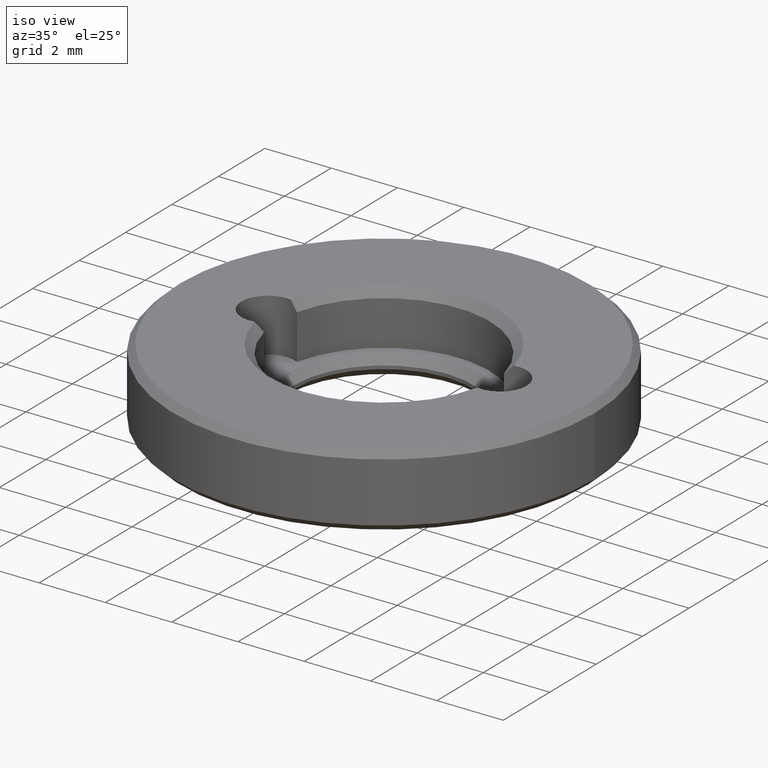
[diagram: clean part render]
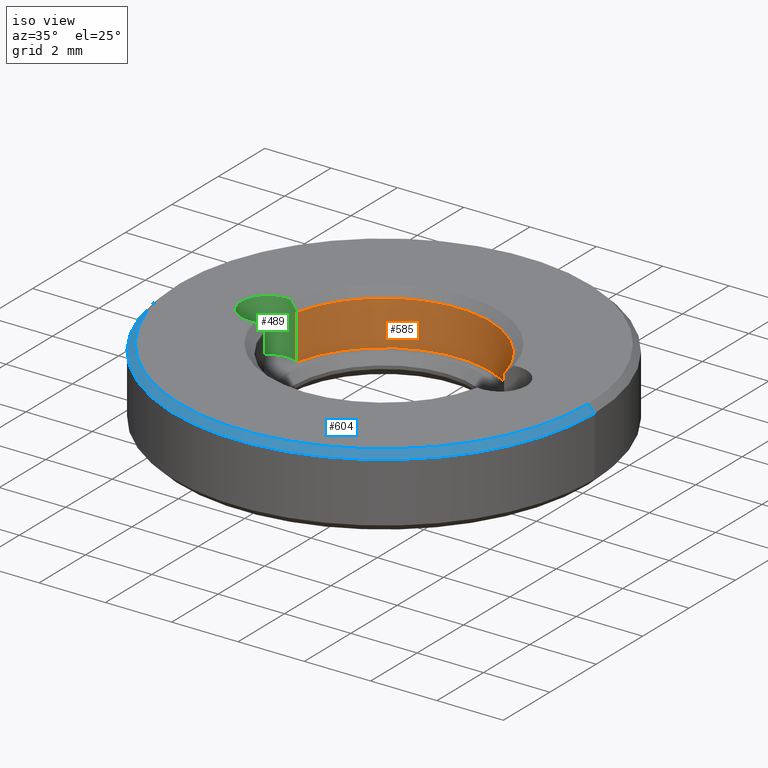
[diagram: same view with three faces highlighted in distinct colors, each labeled with its STEP entity id]
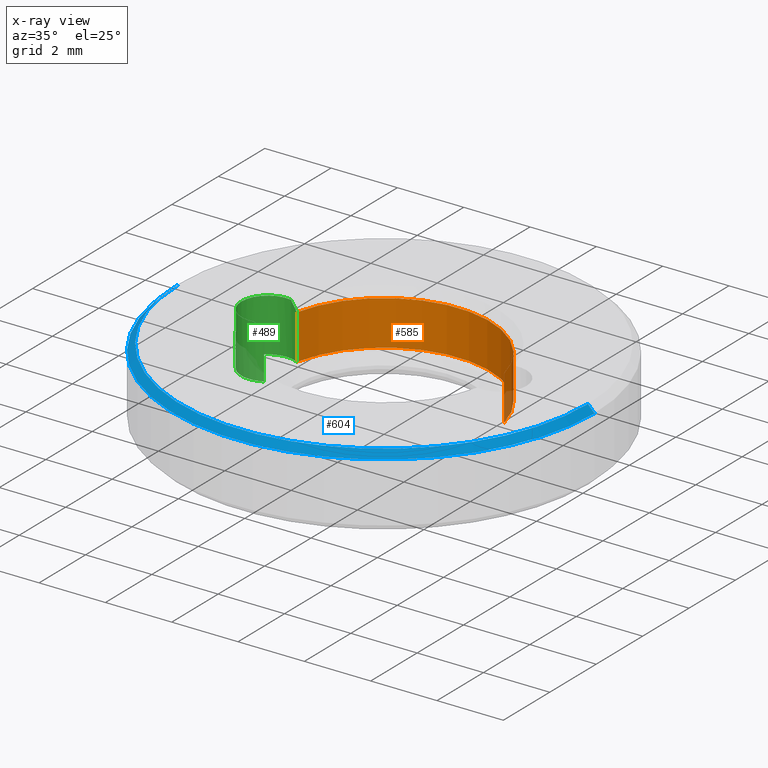
[diagram: x-ray of the same camera — body ghosted, the three highlighted faces saturated]
A machine part, iso view with three faces highlighted in distinct colors.
The next image is the same camera in x-ray (body ghosted, the three faces saturated) — at least one of them is partly hidden behind the body in this view.
Their STEP definitions:

[orange] entity #585 — the highlighted cylindrical surface (partial cylindrical patch) has radius 3.2 mm, axis along (-0, -0, 1).
#14 = AXIS2_PLACEMENT_3D ( 'NONE', #295, #337, #555 ) ;
#16 = ORIENTED_EDGE ( 'NONE', *, *, #401, .F. ) ;
#20 = DIRECTION ( 'NONE',  ( 0.000000000000000000, 0.000000000000000000, 1.000000000000000000 ) ) ;
#29 = EDGE_CURVE ( 'NONE', #665, #344, #528, .T. ) ;
#65 = EDGE_CURVE ( 'NONE', #186, #665, #418, .T. ) ;
#73 = CIRCLE ( 'NONE', #121, 3.200000000000000178 ) ;
#84 = CARTESIAN_POINT ( 'NONE',  ( 0.000000000000000000, 0.000000000000000000, 0.6000000000000000888 ) ) ;
#90 = FACE_OUTER_BOUND ( 'NONE', #102, .T. ) ;
#102 = EDGE_LOOP ( 'NONE', ( #16, #508, #275, #124 ) ) ;
#112 = AXIS2_PLACEMENT_3D ( 'NONE', #84, #421, #519 ) ;
#121 = AXIS2_PLACEMENT_3D ( 'NONE', #356, #20, #452 ) ;
#124 = ORIENTED_EDGE ( 'NONE', *, *, #608, .T. ) ;
#186 = VERTEX_POINT ( 'NONE', #533 ) ;
#203 = CARTESIAN_POINT ( 'NONE',  ( 3.121428571428571441, 0.7047578828714082810, 1.949999999999999956 ) ) ;
#236 = VECTOR ( 'NONE', #584, 1000.000000000000000 ) ;
#275 = ORIENTED_EDGE ( 'NONE', *, *, #29, .T. ) ;
#295 = CARTESIAN_POINT ( 'NONE',  ( 0.000000000000000000, 0.000000000000000000, 1.949999999999999956 ) ) ;
#332 = VECTOR ( 'NONE', #586, 1000.000000000000000 ) ;
#337 = DIRECTION ( 'NONE',  ( 0.000000000000000000, 0.000000000000000000, 1.000000000000000000 ) ) ;
#344 = VERTEX_POINT ( 'NONE', #441 ) ;
#356 = CARTESIAN_POINT ( 'NONE',  ( 0.000000000000000000, 0.000000000000000000, 0.6000000000000000888 ) ) ;
#361 = CARTESIAN_POINT ( 'NONE',  ( 3.121428571428571441, 0.7047578828714082810, 1.400000000000000133 ) ) ;
#401 = EDGE_CURVE ( 'NONE', #186, #681, #73, .T. ) ;
#418 = LINE ( 'NONE', #361, #332 ) ;
#421 = DIRECTION ( 'NONE',  ( -0.000000000000000000, -0.000000000000000000, 1.000000000000000000 ) ) ;
#441 = CARTESIAN_POINT ( 'NONE',  ( -3.121428571428571441, 0.7047578828714076149, 1.949999999999999956 ) ) ;
#452 = DIRECTION ( 'NONE',  ( 1.000000000000000000, 0.000000000000000000, 0.000000000000000000 ) ) ;
#466 = CARTESIAN_POINT ( 'NONE',  ( -3.121428571428571441, 0.7047578828714075039, 1.400000000000000133 ) ) ;
#477 = LINE ( 'NONE', #466, #236 ) ;
#508 = ORIENTED_EDGE ( 'NONE', *, *, #65, .T. ) ;
#519 = DIRECTION ( 'NONE',  ( 1.000000000000000000, 0.000000000000000000, 0.000000000000000000 ) ) ;
#528 = CIRCLE ( 'NONE', #14, 3.200000000000000178 ) ;
#533 = CARTESIAN_POINT ( 'NONE',  ( 3.121428571428571441, 0.7047578828714082810, 0.6000000000000003109 ) ) ;
#555 = DIRECTION ( 'NONE',  ( 1.000000000000000000, 0.000000000000000000, 0.000000000000000000 ) ) ;
#571 = CARTESIAN_POINT ( 'NONE',  ( -3.121428571428571441, 0.7047578828714075039, 0.6000000000000003109 ) ) ;
#584 = DIRECTION ( 'NONE',  ( 0.000000000000000000, 0.000000000000000000, -1.000000000000000000 ) ) ;
#585 = ADVANCED_FACE ( 'NONE', ( #90 ), #632, .F. ) ;
#586 = DIRECTION ( 'NONE',  ( -0.000000000000000000, -0.000000000000000000, 1.000000000000000000 ) ) ;
#608 = EDGE_CURVE ( 'NONE', #344, #681, #477, .T. ) ;
#632 = CYLINDRICAL_SURFACE ( 'NONE', #112, 3.200000000000000178 ) ;
#665 = VERTEX_POINT ( 'NONE', #203 ) ;
#681 = VERTEX_POINT ( 'NONE', #571 ) ;

[blue] entity #604 — the highlighted conical surface has half-angle 45 deg.
#18 = VECTOR ( 'NONE', #400, 1000.000000000000000 ) ;
#50 = DIRECTION ( 'NONE',  ( 0.7071067811865490160, 8.659560562354950115E-17, -0.7071067811865459074 ) ) ;
#88 = AXIS2_PLACEMENT_3D ( 'NONE', #197, #644, #301 ) ;
#117 = DIRECTION ( 'NONE',  ( 0.000000000000000000, 0.000000000000000000, -1.000000000000000000 ) ) ;
#125 = CARTESIAN_POINT ( 'NONE',  ( 0.000000000000000000, 0.000000000000000000, 2.200000000000000178 ) ) ;
#139 = LINE ( 'NONE', #273, #574 ) ;
#143 = CIRCLE ( 'NONE', #304, 6.349999999999999645 ) ;
#148 = ORIENTED_EDGE ( 'NONE', *, *, #513, .T. ) ;
#197 = CARTESIAN_POINT ( 'NONE',  ( 0.000000000000000000, 0.000000000000000000, 2.200000000000000178 ) ) ;
#205 = EDGE_CURVE ( 'NONE', #432, #648, #139, .T. ) ;
#234 = DIRECTION ( 'NONE',  ( 1.000000000000000000, 0.000000000000000000, 0.000000000000000000 ) ) ;
#273 = CARTESIAN_POINT ( 'NONE',  ( 6.149999999999999467, 7.531577814756219106E-16, 2.200000000000000178 ) ) ;
#282 = CARTESIAN_POINT ( 'NONE',  ( -6.349999999999999645, 0.000000000000000000, 2.000000000000000444 ) ) ;
#301 = DIRECTION ( 'NONE',  ( -1.000000000000000000, 0.000000000000000000, 0.000000000000000000 ) ) ;
#304 = AXIS2_PLACEMENT_3D ( 'NONE', #485, #117, #328 ) ;
#328 = DIRECTION ( 'NONE',  ( 1.000000000000000000, 0.000000000000000000, 0.000000000000000000 ) ) ;
#329 = EDGE_CURVE ( 'NONE', #648, #454, #143, .T. ) ;
#351 = LINE ( 'NONE', #666, #18 ) ;
#354 = VERTEX_POINT ( 'NONE', #539 ) ;
#364 = FACE_OUTER_BOUND ( 'NONE', #667, .T. ) ;
#392 = ORIENTED_EDGE ( 'NONE', *, *, #205, .F. ) ;
#393 = EDGE_CURVE ( 'NONE', #354, #432, #541, .T. ) ;
#400 = DIRECTION ( 'NONE',  ( -0.7071067811865490160, 0.000000000000000000, -0.7071067811865459074 ) ) ;
#432 = VERTEX_POINT ( 'NONE', #673 ) ;
#454 = VERTEX_POINT ( 'NONE', #282 ) ;
#485 = CARTESIAN_POINT ( 'NONE',  ( 0.000000000000000000, 0.000000000000000000, 2.000000000000000444 ) ) ;
#503 = DIRECTION ( 'NONE',  ( 0.000000000000000000, 0.000000000000000000, 1.000000000000000000 ) ) ;
#513 = EDGE_CURVE ( 'NONE', #354, #454, #351, .T. ) ;
#514 = ORIENTED_EDGE ( 'NONE', *, *, #329, .F. ) ;
#539 = CARTESIAN_POINT ( 'NONE',  ( -6.149999999999999467, 0.000000000000000000, 2.200000000000000178 ) ) ;
#541 = CIRCLE ( 'NONE', #598, 6.149999999999999467 ) ;
#574 = VECTOR ( 'NONE', #50, 1000.000000000000000 ) ;
#583 = ORIENTED_EDGE ( 'NONE', *, *, #393, .F. ) ;
#598 = AXIS2_PLACEMENT_3D ( 'NONE', #125, #503, #234 ) ;
#604 = ADVANCED_FACE ( 'NONE', ( #364 ), #609, .T. ) ;
#609 = CONICAL_SURFACE ( 'NONE', #88, 6.149999999999999467, 0.7853981633974503884 ) ;
#644 = DIRECTION ( 'NONE',  ( 0.000000000000000000, 0.000000000000000000, -1.000000000000000000 ) ) ;
#648 = VERTEX_POINT ( 'NONE', #682 ) ;
#666 = CARTESIAN_POINT ( 'NONE',  ( -6.149999999999999467, 0.000000000000000000, 2.200000000000000178 ) ) ;
#667 = EDGE_LOOP ( 'NONE', ( #392, #583, #148, #514 ) ) ;
#673 = CARTESIAN_POINT ( 'NONE',  ( 6.149999999999999467, 7.654042494670954648E-16, 2.200000000000000178 ) ) ;
#682 = CARTESIAN_POINT ( 'NONE',  ( 6.349999999999999645, 7.776507174585692163E-16, 2.000000000000000444 ) ) ;

[green] entity #489 — the highlighted cylindrical surface (edge-blend (fillet) strip) has radius 0.8 mm, axis along (-0, -0, 1).
#1 = LINE ( 'NONE', #384, #110 ) ;
#38 = CARTESIAN_POINT ( 'NONE',  ( -3.358928571428574816, -0.7874635560080348595, 2.200000000000000178 ) ) ;
#45 = CARTESIAN_POINT ( 'NONE',  ( -3.121428571428571441, -0.7047578828714082810, 0.6000000000000003109 ) ) ;
#57 = ORIENTED_EDGE ( 'NONE', *, *, #683, .F. ) ;
#62 = ORIENTED_EDGE ( 'NONE', *, *, #704, .T. ) ;
#72 = ORIENTED_EDGE ( 'NONE', *, *, #94, .T. ) ;
#74 = B_SPLINE_CURVE_WITH_KNOTS ( 'NONE', 3,
 ( #38, #430, #572, #99 ),
 .UNSPECIFIED., .F., .F.,
 ( 4, 4 ),
 ( 2.812734725205287172E-07, 0.0003548887725015042603 ),
 .UNSPECIFIED. ) ;
#89 = ORIENTED_EDGE ( 'NONE', *, *, #410, .T. ) ;
#94 = EDGE_CURVE ( 'NONE', #534, #672, #74, .T. ) ;
#99 = CARTESIAN_POINT ( 'NONE',  ( -3.121428571428571441, -0.7047578828714082810, 1.949999999999999956 ) ) ;
#110 = VECTOR ( 'NONE', #537, 1000.000000000000000 ) ;
#178 = DIRECTION ( 'NONE',  ( -0.000000000000000000, -0.000000000000000000, -1.000000000000000000 ) ) ;
#192 = VERTEX_POINT ( 'NONE', #45 ) ;
#211 = CARTESIAN_POINT ( 'NONE',  ( -3.121428571428571441, 0.7047578828714076149, 1.949999999999999956 ) ) ;
#214 = CARTESIAN_POINT ( 'NONE',  ( -3.500000000000000000, -4.286263797015736595E-16, 2.200000000000000178 ) ) ;
#229 = CARTESIAN_POINT ( 'NONE',  ( -3.358928571428574816, -0.7874635560080348595, 2.200000000000000178 ) ) ;
#235 = CIRCLE ( 'NONE', #692, 0.8000000000000008216 ) ;
#236 = VECTOR ( 'NONE', #584, 1000.000000000000000 ) ;
#242 = EDGE_CURVE ( 'NONE', #344, #527, #431, .T. ) ;
#318 = CARTESIAN_POINT ( 'NONE',  ( -3.196902438309962236, 0.7452998197543061476, 2.032549541901520040 ) ) ;
#333 = CIRCLE ( 'NONE', #436, 0.8000000000000008216 ) ;
#344 = VERTEX_POINT ( 'NONE', #441 ) ;
#345 = DIRECTION ( 'NONE',  ( 1.000000000000000000, 0.000000000000000000, 0.000000000000000000 ) ) ;
#360 = CARTESIAN_POINT ( 'NONE',  ( -3.121428571428571441, -0.7047578828714082810, 1.949999999999999956 ) ) ;
#384 = CARTESIAN_POINT ( 'NONE',  ( -3.121428571428571441, -0.7047578828714082810, 1.400000000000000133 ) ) ;
#409 = FACE_OUTER_BOUND ( 'NONE', #685, .T. ) ;
#410 = EDGE_CURVE ( 'NONE', #192, #681, #235, .T. ) ;
#430 = CARTESIAN_POINT ( 'NONE',  ( -3.276081714236735998, -0.7726218221810712272, 2.115952463718425491 ) ) ;
#431 = B_SPLINE_CURVE_WITH_KNOTS ( 'NONE', 3,
 ( #211, #318, #705, #601 ),
 .UNSPECIFIED., .F., .F.,
 ( 4, 4 ),
 ( 2.863821279594674527E-07, 0.0003548938811569430979 ),
 .UNSPECIFIED. ) ;
#433 = DIRECTION ( 'NONE',  ( 0.000000000000000000, 0.000000000000000000, 1.000000000000000000 ) ) ;
#436 = AXIS2_PLACEMENT_3D ( 'NONE', #214, #433, #658 ) ;
#441 = CARTESIAN_POINT ( 'NONE',  ( -3.121428571428571441, 0.7047578828714076149, 1.949999999999999956 ) ) ;
#451 = AXIS2_PLACEMENT_3D ( 'NONE', #497, #455, #345 ) ;
#455 = DIRECTION ( 'NONE',  ( -0.000000000000000000, -0.000000000000000000, 1.000000000000000000 ) ) ;
#459 = CARTESIAN_POINT ( 'NONE',  ( -3.500000000000000000, -4.286263797015736595E-16, 0.6000000000000003109 ) ) ;
#466 = CARTESIAN_POINT ( 'NONE',  ( -3.121428571428571441, 0.7047578828714075039, 1.400000000000000133 ) ) ;
#477 = LINE ( 'NONE', #466, #236 ) ;
#489 = ADVANCED_FACE ( 'NONE', ( #409 ), #500, .F. ) ;
#497 = CARTESIAN_POINT ( 'NONE',  ( -3.500000000000000000, -4.286263797015736595E-16, -1.662741699796954853 ) ) ;
#500 = CYLINDRICAL_SURFACE ( 'NONE', #451, 0.8000000000000008216 ) ;
#502 = ORIENTED_EDGE ( 'NONE', *, *, #608, .F. ) ;
#527 = VERTEX_POINT ( 'NONE', #557 ) ;
#534 = VERTEX_POINT ( 'NONE', #229 ) ;
#537 = DIRECTION ( 'NONE',  ( -0.000000000000000000, -0.000000000000000000, 1.000000000000000000 ) ) ;
#554 = DIRECTION ( 'NONE',  ( 1.000000000000000000, 0.000000000000000000, 0.000000000000000000 ) ) ;
#557 = CARTESIAN_POINT ( 'NONE',  ( -3.358928571428574816, 0.7874635560080339713, 2.200000000000000178 ) ) ;
#571 = CARTESIAN_POINT ( 'NONE',  ( -3.121428571428571441, 0.7047578828714075039, 0.6000000000000003109 ) ) ;
#572 = CARTESIAN_POINT ( 'NONE',  ( -3.196902438309962236, -0.7452998197543070358, 2.032549541901520040 ) ) ;
#584 = DIRECTION ( 'NONE',  ( 0.000000000000000000, 0.000000000000000000, -1.000000000000000000 ) ) ;
#601 = CARTESIAN_POINT ( 'NONE',  ( -3.358928571428574816, 0.7874635560080339713, 2.200000000000000178 ) ) ;
#608 = EDGE_CURVE ( 'NONE', #344, #681, #477, .T. ) ;
#617 = ORIENTED_EDGE ( 'NONE', *, *, #242, .T. ) ;
#658 = DIRECTION ( 'NONE',  ( 1.000000000000000000, 0.000000000000000000, 0.000000000000000000 ) ) ;
#672 = VERTEX_POINT ( 'NONE', #360 ) ;
#681 = VERTEX_POINT ( 'NONE', #571 ) ;
#683 = EDGE_CURVE ( 'NONE', #192, #672, #1, .T. ) ;
#685 = EDGE_LOOP ( 'NONE', ( #89, #502, #617, #62, #72, #57 ) ) ;
#692 = AXIS2_PLACEMENT_3D ( 'NONE', #459, #178, #554 ) ;
#704 = EDGE_CURVE ( 'NONE', #527, #534, #333, .T. ) ;
#705 = CARTESIAN_POINT ( 'NONE',  ( -3.276081714236735998, 0.7726218221810703390, 2.115952463718425491 ) ) ;